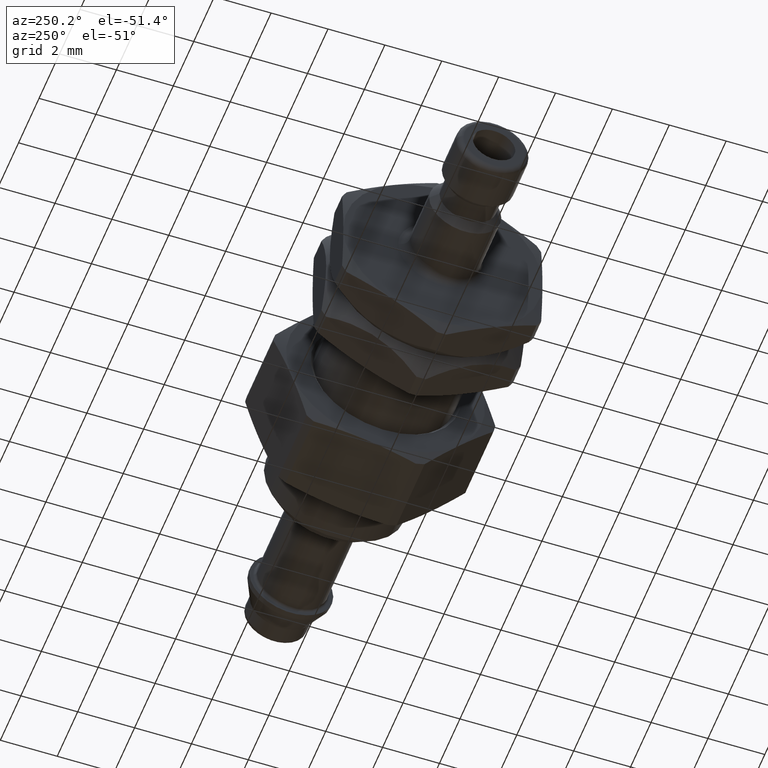
[diagram: clean part render]
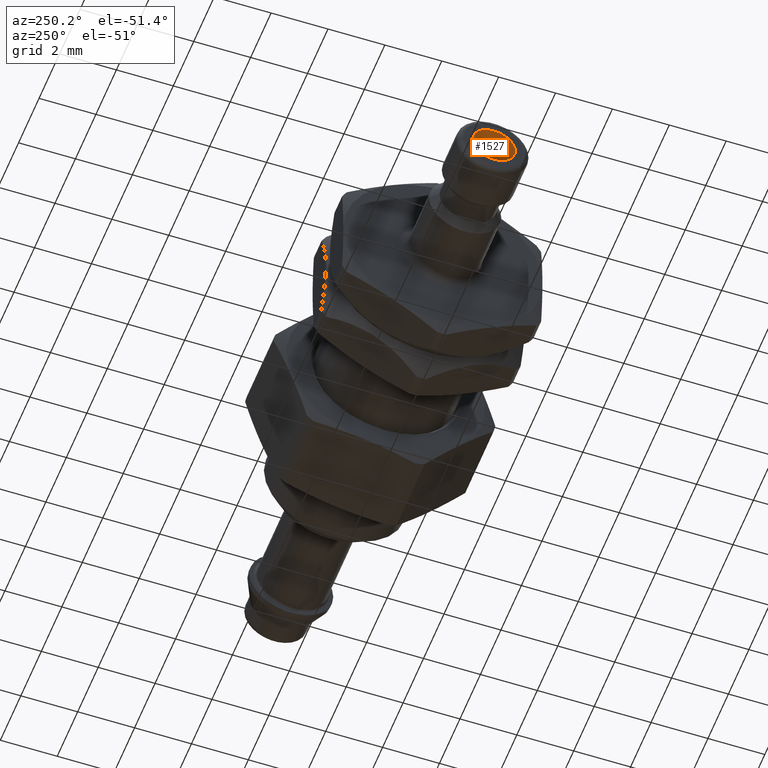
[diagram: same view with one face highlighted and labeled with its STEP entity id]
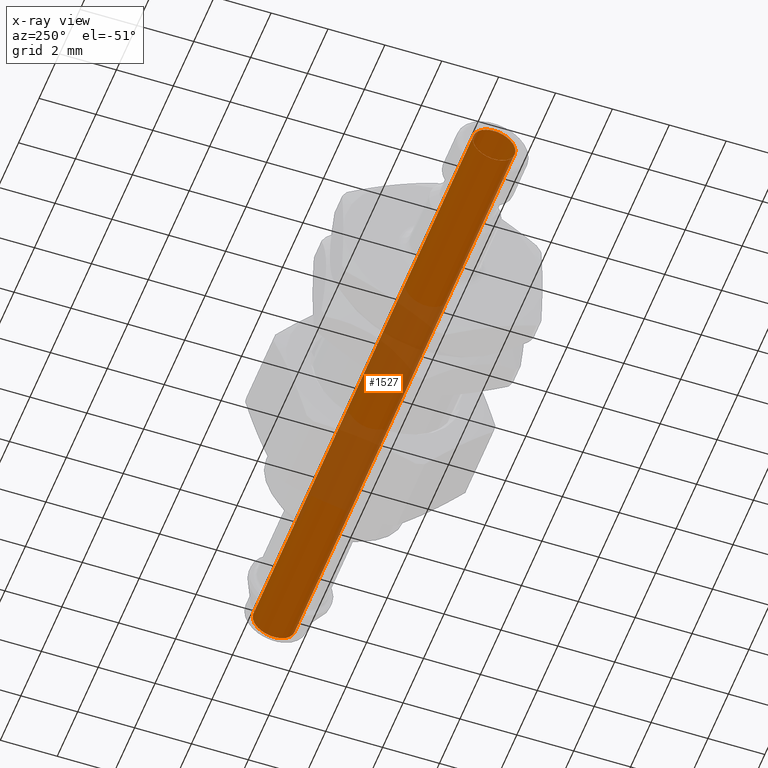
[diagram: x-ray of the same camera — body ghosted, the highlighted face saturated]
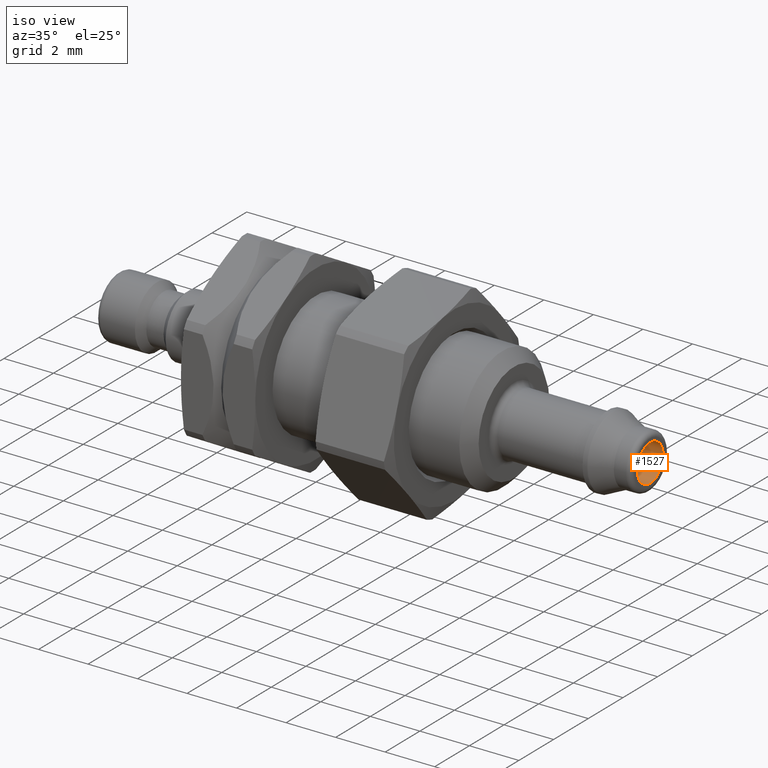
[diagram: same view with one face highlighted and labeled with its STEP entity id]
A machine part, auxiliary view. The second image highlights one B-rep face of the part: STEP entity #1527.
The next image is the same camera in x-ray: the body ghosted, the highlighted face saturated — about 33% of this face is hidden behind the body in this view.
A second angle (iso view) of the same face is appended — the face is thin or edge-on in the first view.
In plain terms, the highlighted cylindrical surface (bore or boss wall) has radius 0.75 mm, axis along (1, 0, 0).
Its self-contained STEP definition (entity closure, byte-faithful):
#1496=CARTESIAN_POINT('',(21.500000000000000,0.750000000000000,0.0));
#1497=VERTEX_POINT('',#1496);
#1498=CARTESIAN_POINT('',(21.500000000000000,0.0,0.0));
#1499=DIRECTION('',(1.0,0.0,0.0));
#1500=DIRECTION('',(0.0,1.0,0.0));
#1501=AXIS2_PLACEMENT_3D('',#1498,#1499,#1500);
#1502=CIRCLE('',#1501,0.750000000000000);
#1503=EDGE_CURVE('',#1497,#1497,#1502,.T.);
#1508=CARTESIAN_POINT('',(10.750000000000000,0.0,0.0));
#1509=DIRECTION('',(1.0,0.0,0.0));
#1510=DIRECTION('',(0.0,1.0,0.0));
#1511=AXIS2_PLACEMENT_3D('',#1508,#1509,#1510);
#1512=CYLINDRICAL_SURFACE('',#1511,0.750000000000000);
#1513=CARTESIAN_POINT('',(0.0,0.750000000000000,0.0));
#1514=VERTEX_POINT('',#1513);
#1515=CARTESIAN_POINT('',(0.0,0.0,0.0));
#1516=DIRECTION('',(1.0,0.0,0.0));
#1517=DIRECTION('',(0.0,1.0,0.0));
#1518=AXIS2_PLACEMENT_3D('',#1515,#1516,#1517);
#1519=CIRCLE('',#1518,0.750000000000000);
#1520=EDGE_CURVE('',#1514,#1514,#1519,.T.);
#1521=ORIENTED_EDGE('',*,*,#1520,.F.);
#1522=EDGE_LOOP('',(#1521));
#1523=FACE_OUTER_BOUND('',#1522,.T.);
#1524=ORIENTED_EDGE('',*,*,#1503,.T.);
#1525=EDGE_LOOP('',(#1524));
#1526=FACE_BOUND('',#1525,.T.);
#1527=ADVANCED_FACE('',(#1523,#1526),#1512,.F.);